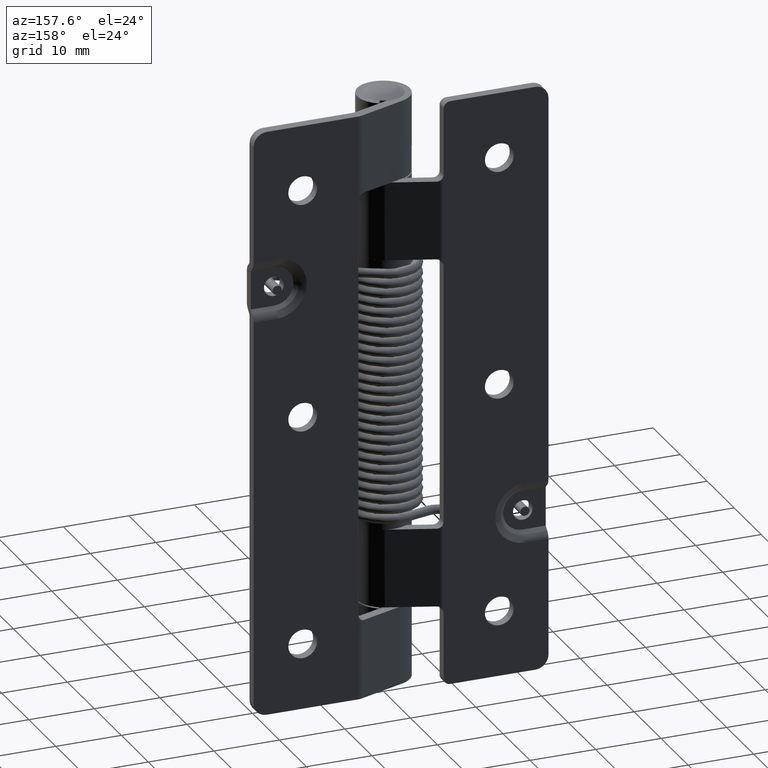
[diagram: clean part render]
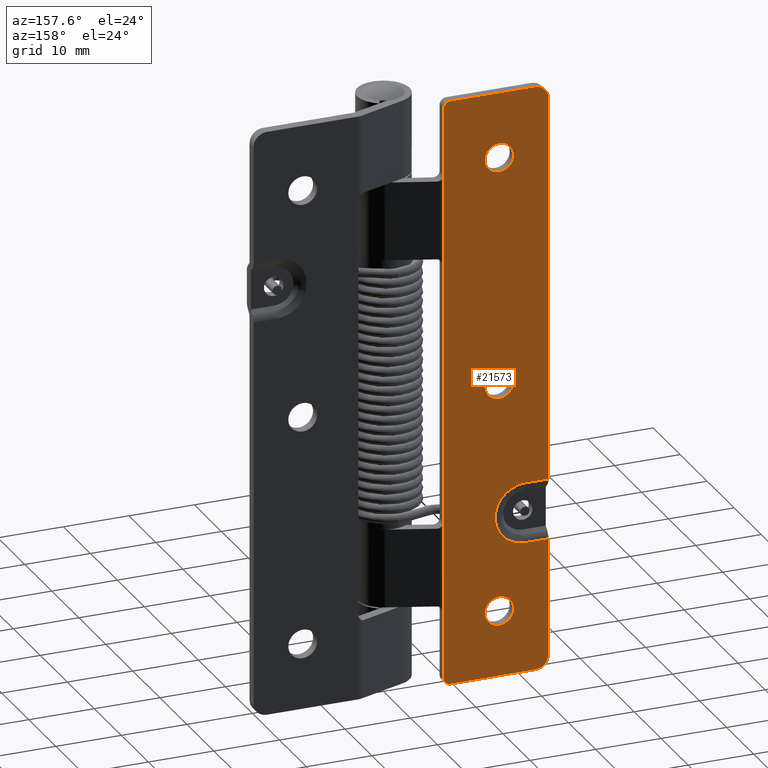
[diagram: same view with one face highlighted and labeled with its STEP entity id]
A machine part, auxiliary view. The second image highlights one B-rep face of the part: STEP entity #21573.
In plain terms, the highlighted face is a freeform B-spline surface patch.
Its self-contained STEP definition (entity closure, byte-faithful):
#18577=CARTESIAN_POINT('',(-13.377989701339310,6.500000000000000,81.486298779071063));
#18578=VERTEX_POINT('',#18577);
#18584=CARTESIAN_POINT('',(-12.799999999973810,6.500000000000000,80.000001341051615));
#18585=VERTEX_POINT('',#18584);
#18586=CARTESIAN_POINT('',(-12.799999999973810,6.500000000000000,80.000001341051615));
#18587=CARTESIAN_POINT('',(-12.799806779069691,6.499999999999999,80.255012563953002));
#18588=CARTESIAN_POINT('',(-12.895714095362850,6.499999999999999,80.798816434485417));
#18589=CARTESIAN_POINT('',(-13.182475110645230,6.500000000000005,81.273428980489641));
#18590=CARTESIAN_POINT('',(-13.377989701339310,6.500000000000000,81.486298779071063));
#18591=B_SPLINE_CURVE_WITH_KNOTS('',3,(#18586,#18587,#18588,#18589,#18590),.UNSPECIFIED.,.F.,.U.,(4,1,4),(0.000000041432975,0.764972969320677,1.631918291861970),.UNSPECIFIED.);
#18592=EDGE_CURVE('',#18585,#18578,#18591,.T.);
#18594=CARTESIAN_POINT('',(-14.999999999973401,6.500000000000000,77.800000000000011));
#18595=VERTEX_POINT('',#18594);
#18596=CARTESIAN_POINT('',(-14.999999999973401,6.500000000000000,77.800000000000011));
#18597=CARTESIAN_POINT('',(-14.820012265788719,6.500000000000003,77.799959054639615));
#18598=CARTESIAN_POINT('',(-14.478057489025090,6.500000000000001,77.842198995238348));
#18599=CARTESIAN_POINT('',(-14.019742263973921,6.499999999999990,78.012552772954919));
#18600=CARTESIAN_POINT('',(-13.637763846942720,6.500000000000016,78.254458045177699));
#18601=CARTESIAN_POINT('',(-13.323400110824650,6.499999999999998,78.553752762167719));
#18602=CARTESIAN_POINT('',(-13.094316573614510,6.500000000000009,78.879051944313673));
#18603=CARTESIAN_POINT('',(-12.870478719436260,6.499999999999958,79.352185085314233));
#18604=CARTESIAN_POINT('',(-12.799743615870330,6.500000000000028,79.729972473691632));
#18605=CARTESIAN_POINT('',(-12.799999999973810,6.500000000000000,80.000001341051615));
#18606=B_SPLINE_CURVE_WITH_KNOTS('',3,(#18596,#18597,#18598,#18599,#18600,#18601,#18602,#18603,#18604,#18605),.UNSPECIFIED.,.F.,.U.,(4,1,1,1,1,1,1,4),(0.000000119337975,0.539963458544781,1.025960383100677,1.457961161233303,1.889881951044141,2.321879742460357,2.645878031166004,3.455839393398152),.UNSPECIFIED.);
#18607=EDGE_CURVE('',#18595,#18585,#18606,.T.);
#18609=CARTESIAN_POINT('',(-16.622010298607488,6.500000000000000,78.513701220928937));
#18610=VERTEX_POINT('',#18609);
#18611=CARTESIAN_POINT('',(-16.622010298607488,6.500000000000000,78.513701220928937));
#18612=CARTESIAN_POINT('',(-16.519338886788731,6.500000000000010,78.401635828081240));
#18613=CARTESIAN_POINT('',(-16.247808691613059,6.499999999999997,78.160834674769234));
#18614=CARTESIAN_POINT('',(-15.702869317306391,6.500000000000000,77.877594385982533));
#18615=CARTESIAN_POINT('',(-15.247007015395861,6.499999999999995,77.799838804242924));
#18616=CARTESIAN_POINT('',(-14.999999999973401,6.500000000000000,77.800000000000011));
#18617=B_SPLINE_CURVE_WITH_KNOTS('',3,(#18611,#18612,#18613,#18614,#18615,#18616),.UNSPECIFIED.,.F.,.U.,(4,1,1,4),(0.000000031291066,0.455980040628832,1.082944215701101,1.823920068532576),.UNSPECIFIED.);
#18618=EDGE_CURVE('',#18610,#18595,#18617,.T.);
#18707=CARTESIAN_POINT('',(-17.199999999972992,6.500000000000000,79.999998658948385));
#18708=VERTEX_POINT('',#18707);
#18709=CARTESIAN_POINT('',(-17.199999999972992,6.500000000000000,79.999998658948385));
#18710=CARTESIAN_POINT('',(-17.200017201221058,6.499999999999993,79.847009882157778));
#18711=CARTESIAN_POINT('',(-17.166196202512030,6.500000000000007,79.524036828625739));
#18712=CARTESIAN_POINT('',(-16.991594156724901,6.500000000000008,79.004996454522214));
#18713=CARTESIAN_POINT('',(-16.771398838562000,6.499999999999991,78.676564451748433));
#18714=CARTESIAN_POINT('',(-16.622010298607488,6.500000000000000,78.513701220928937));
#18715=B_SPLINE_CURVE_WITH_KNOTS('',3,(#18709,#18710,#18711,#18712,#18713,#18714),.UNSPECIFIED.,.F.,.U.,(4,1,1,4),(0.000000041431848,0.458979640109364,0.968938776615176,1.631918291861960),.UNSPECIFIED.);
#18716=EDGE_CURVE('',#18708,#18610,#18715,.T.);
#18718=CARTESIAN_POINT('',(-14.999999999973401,6.500000000000000,82.199999999999989));
#18719=VERTEX_POINT('',#18718);
#18720=CARTESIAN_POINT('',(-14.999999999973401,6.500000000000000,82.199999999999989));
#18721=CARTESIAN_POINT('',(-15.270019082742481,6.499999999999994,82.200210620302130));
#18722=CARTESIAN_POINT('',(-15.683797835315559,6.500000000000001,82.122814236799854));
#18723=CARTESIAN_POINT('',(-16.216883562402309,6.499999999999992,81.854392682414883));
#18724=CARTESIAN_POINT('',(-16.665606913036751,6.500000000000006,81.486361685043860));
#18725=CARTESIAN_POINT('',(-16.990314925633619,6.499999999999999,81.000395285986428));
#18726=CARTESIAN_POINT('',(-17.166028101356389,6.500000000000001,80.467941266540038));
#18727=CARTESIAN_POINT('',(-17.200034295412809,6.499999999999979,80.161988732216869));
#18728=CARTESIAN_POINT('',(-17.199999999972992,6.500000000000000,79.999998658948385));
#18729=B_SPLINE_CURVE_WITH_KNOTS('',3,(#18720,#18721,#18722,#18723,#18724,#18725,#18726,#18727,#18728),.UNSPECIFIED.,.F.,.U.,(4,1,1,1,1,1,4),(0.000000119336327,0.809961701220482,1.241946409601381,1.781902457822589,2.537881118140890,2.969866776532188,3.455839393398153),.UNSPECIFIED.);
#18730=EDGE_CURVE('',#18719,#18708,#18729,.T.);
#18732=CARTESIAN_POINT('',(-13.377989701339310,6.500000000000000,81.486298779071063));
#18733=CARTESIAN_POINT('',(-13.519120823883201,6.500000000000008,81.640453927407549));
#18734=CARTESIAN_POINT('',(-13.771555967705879,6.499999999999994,81.847112938782061));
#18735=CARTESIAN_POINT('',(-14.316233884004230,6.500000000000007,82.121357561307931));
#18736=CARTESIAN_POINT('',(-14.714958185483670,6.499999999999999,82.200321106597272));
#18737=CARTESIAN_POINT('',(-14.999999999973401,6.500000000000000,82.199999999999989));
#18738=B_SPLINE_CURVE_WITH_KNOTS('',3,(#18732,#18733,#18734,#18735,#18736,#18737),.UNSPECIFIED.,.F.,.U.,(4,1,1,4),(0.000000031292747,0.626979836887177,0.968953283160556,1.823920068532557),.UNSPECIFIED.);
#18739=EDGE_CURVE('',#18578,#18719,#18738,.T.);
#18775=CARTESIAN_POINT('',(-13.377989701339310,6.500000000000001,46.486298779071063));
#18776=VERTEX_POINT('',#18775);
#18782=CARTESIAN_POINT('',(-12.799999999973810,6.500000000000001,45.000001341051622));
#18783=VERTEX_POINT('',#18782);
#18784=CARTESIAN_POINT('',(-12.799999999973810,6.500000000000001,45.000001341051622));
#18785=CARTESIAN_POINT('',(-12.799816804972281,6.500000000000001,45.255008541077260));
#18786=CARTESIAN_POINT('',(-12.895672407009661,6.499999999999997,45.798832982020471));
#18787=CARTESIAN_POINT('',(-13.182510713349730,6.500000000000006,46.273411516028943));
#18788=CARTESIAN_POINT('',(-13.377989701339310,6.500000000000001,46.486298779071063));
#18789=B_SPLINE_CURVE_WITH_KNOTS('',3,(#18784,#18785,#18786,#18787,#18788),.UNSPECIFIED.,.F.,.U.,(4,1,4),(0.000000041432271,0.764972969320550,1.631918291861962),.UNSPECIFIED.);
#18790=EDGE_CURVE('',#18783,#18776,#18789,.T.);
#18792=CARTESIAN_POINT('',(-14.999999999973401,6.500000000000000,42.799999999999997));
#18793=VERTEX_POINT('',#18792);
#18794=CARTESIAN_POINT('',(-14.999999999973401,6.500000000000000,42.799999999999997));
#18795=CARTESIAN_POINT('',(-14.820012702359660,6.500000000000004,42.799958632240617));
#18796=CARTESIAN_POINT('',(-14.478056477498180,6.499999999999996,42.842199830614213));
#18797=CARTESIAN_POINT('',(-14.019743214529891,6.500000000000014,43.012552705798903));
#18798=CARTESIAN_POINT('',(-13.637763904503061,6.499999999999989,43.254458202587742));
#18799=CARTESIAN_POINT('',(-13.297193478731710,6.500000000000004,43.578688662796090));
#18800=CARTESIAN_POINT('',(-13.015056606783270,6.499999999999982,44.000849339286191));
#18801=CARTESIAN_POINT('',(-12.837928812465570,6.500000000000071,44.496044920458608));
#18802=CARTESIAN_POINT('',(-12.799971406449711,6.499999999999949,44.838013364906693));
#18803=CARTESIAN_POINT('',(-12.799999999973810,6.500000000000001,45.000001341051622));
#18804=B_SPLINE_CURVE_WITH_KNOTS('',3,(#18794,#18795,#18796,#18797,#18798,#18799,#18800,#18801,#18802,#18803),.UNSPECIFIED.,.F.,.U.,(4,1,1,1,1,1,1,4),(0.000000119334410,0.539963458541999,1.025960383098603,1.457961161231935,1.889881951043199,2.429879285872298,2.969866776532105,3.455839393398165),.UNSPECIFIED.);
#18805=EDGE_CURVE('',#18793,#18783,#18804,.T.);
#18807=CARTESIAN_POINT('',(-16.622010298607488,6.500000000000000,43.513701220928937));
#18808=VERTEX_POINT('',#18807);
#18809=CARTESIAN_POINT('',(-16.622010298607488,6.500000000000000,43.513701220928937));
#18810=CARTESIAN_POINT('',(-16.455253090298029,6.499999999999984,43.331479077102387));
#18811=CARTESIAN_POINT('',(-16.135593218434270,6.500000000000018,43.083416734507352));
#18812=CARTESIAN_POINT('',(-15.569917664350760,6.499999999999989,42.851841948983299));
#18813=CARTESIAN_POINT('',(-15.208994972169510,6.500000000000014,42.799917668759747));
#18814=CARTESIAN_POINT('',(-14.999999999973401,6.500000000000000,42.799999999999997));
#18815=B_SPLINE_CURVE_WITH_KNOTS('',3,(#18809,#18810,#18811,#18812,#18813,#18814),.UNSPECIFIED.,.F.,.U.,(4,1,1,4),(0.000000031292259,0.740975884128395,1.196940262975004,1.823920068532590),.UNSPECIFIED.);
#18816=EDGE_CURVE('',#18808,#18793,#18815,.T.);
#18904=CARTESIAN_POINT('',(-17.199999999972992,6.500000000000000,44.999998658948392));
#18905=VERTEX_POINT('',#18904);
#18906=CARTESIAN_POINT('',(-17.199999999972992,6.500000000000000,44.999998658948392));
#18907=CARTESIAN_POINT('',(-17.200183474029139,6.500000000000010,44.744991511805672));
#18908=CARTESIAN_POINT('',(-17.104328186554980,6.499999999999988,44.201166094234956));
#18909=CARTESIAN_POINT('',(-16.817489110601780,6.500000000000006,43.726588827961237));
#18910=CARTESIAN_POINT('',(-16.622010298607488,6.500000000000000,43.513701220928937));
#18911=B_SPLINE_CURVE_WITH_KNOTS('',3,(#18906,#18907,#18908,#18909,#18910),.UNSPECIFIED.,.F.,.U.,(4,1,4),(0.000000041432455,0.764972969320328,1.631918291861981),.UNSPECIFIED.);
#18912=EDGE_CURVE('',#18905,#18808,#18911,.T.);
#18914=CARTESIAN_POINT('',(-14.999999999973401,6.500000000000000,47.200000000000003));
#18915=VERTEX_POINT('',#18914);
#18916=CARTESIAN_POINT('',(-14.999999999973401,6.500000000000000,47.200000000000003));
#18917=CARTESIAN_POINT('',(-15.269999235257190,6.500000000000002,47.200196814908622));
#18918=CARTESIAN_POINT('',(-15.755827091042450,6.500000000000004,47.109409631884247));
#18919=CARTESIAN_POINT('',(-16.404947952679191,6.499999999999999,46.741733629016387));
#18920=CARTESIAN_POINT('',(-16.846530043717170,6.499999999999996,46.254515669167120));
#18921=CARTESIAN_POINT('',(-17.133288525593009,6.500000000000011,45.647872128913299));
#18922=CARTESIAN_POINT('',(-17.200137240262649,6.499999999999995,45.233992916953483));
#18923=CARTESIAN_POINT('',(-17.199999999972992,6.500000000000000,44.999998658948392));
#18924=B_SPLINE_CURVE_WITH_KNOTS('',3,(#18916,#18917,#18918,#18919,#18920,#18921,#18922,#18923),.UNSPECIFIED.,.F.,.U.,(4,1,1,1,1,4),(0.000000119328077,0.809961701214544,1.457961161229064,2.213892370918137,2.753879863960027,3.455839393398185),.UNSPECIFIED.);
#18925=EDGE_CURVE('',#18915,#18905,#18924,.T.);
#18927=CARTESIAN_POINT('',(-13.377989701339310,6.500000000000001,46.486298779071063));
#18928=CARTESIAN_POINT('',(-13.544748052105421,6.499999999999993,46.668521062171529));
#18929=CARTESIAN_POINT('',(-13.864405904240300,6.500000000000005,46.916583718253150));
#18930=CARTESIAN_POINT('',(-14.430081573944401,6.499999999999998,47.148157771193027));
#18931=CARTESIAN_POINT('',(-14.791005495675270,6.499999999999998,47.200082005871643));
#18932=CARTESIAN_POINT('',(-14.999999999973401,6.500000000000000,47.200000000000003));
#18933=B_SPLINE_CURVE_WITH_KNOTS('',3,(#18927,#18928,#18929,#18930,#18931,#18932),.UNSPECIFIED.,.F.,.U.,(4,1,1,4),(0.000000031291429,0.740975884127962,1.196940262974780,1.823920068532596),.UNSPECIFIED.);
#18934=EDGE_CURVE('',#18776,#18915,#18933,.T.);
#18970=CARTESIAN_POINT('',(-13.377989701339390,6.500000000000000,11.486298779071060));
#18971=VERTEX_POINT('',#18970);
#18977=CARTESIAN_POINT('',(-12.799999999973890,6.500000000000000,10.000001341051620));
#18978=VERTEX_POINT('',#18977);
#18979=CARTESIAN_POINT('',(-12.799999999973890,6.500000000000000,10.000001341051620));
#18980=CARTESIAN_POINT('',(-12.799703064301751,6.500000000000000,10.289021682112340));
#18981=CARTESIAN_POINT('',(-12.908842155191509,6.500000000000012,10.832702629967221));
#18982=CARTESIAN_POINT('',(-13.205574515781210,6.499999999999983,11.298411961539991));
#18983=CARTESIAN_POINT('',(-13.377989701339390,6.500000000000000,11.486298779071060));
#18984=B_SPLINE_CURVE_WITH_KNOTS('',3,(#18979,#18980,#18981,#18982,#18983),.UNSPECIFIED.,.F.,.U.,(4,1,4),(0.000000041432939,0.866945363968755,1.631918291861957),.UNSPECIFIED.);
#18985=EDGE_CURVE('',#18978,#18971,#18984,.T.);
#18987=CARTESIAN_POINT('',(-14.999999999973481,6.500000000000000,7.800000000000000));
#18988=VERTEX_POINT('',#18987);
#18989=CARTESIAN_POINT('',(-14.999999999973481,6.500000000000000,7.800000000000000));
#18990=CARTESIAN_POINT('',(-14.693941698951710,6.500000000000012,7.799624769448820));
#18991=CARTESIAN_POINT('',(-14.244322339271919,6.499999999999995,7.895420992693118));
#18992=CARTESIAN_POINT('',(-13.693570182588131,6.499999999999999,8.207545255266961));
#18993=CARTESIAN_POINT('',(-13.344223846146990,6.500000000000018,8.524164399812422));
#18994=CARTESIAN_POINT('',(-13.073477956709100,6.499999999999959,8.908622457354150));
#18995=CARTESIAN_POINT('',(-12.860883221034291,6.500000000000067,9.388115728596629));
#18996=CARTESIAN_POINT('',(-12.799880462478621,6.499999999999962,9.766003211242985));
#18997=CARTESIAN_POINT('',(-12.799999999973890,6.500000000000000,10.000001341051620));
#18998=B_SPLINE_CURVE_WITH_KNOTS('',3,(#18989,#18990,#18991,#18992,#18993,#18994,#18995,#18996,#18997),.UNSPECIFIED.,.F.,.U.,(4,1,1,1,1,1,4),(0.000000119333313,0.917958583113831,1.349952778542426,1.889881951043158,2.321879742459847,2.753879863960657,3.455839393398193),.UNSPECIFIED.);
#18999=EDGE_CURVE('',#18988,#18978,#18998,.T.);
#19001=CARTESIAN_POINT('',(-16.622010298607570,6.500000000000000,8.513701220928944));
#19002=VERTEX_POINT('',#19001);
#19003=CARTESIAN_POINT('',(-16.622010298607570,6.500000000000000,8.513701220928944));
#19004=CARTESIAN_POINT('',(-16.429660650989021,6.500000000000000,8.303346623199175));
#19005=CARTESIAN_POINT('',(-16.102093843739031,6.500000000000023,8.062692037476722));
#19006=CARTESIAN_POINT('',(-15.531911898057590,6.499999999999975,7.846405357418046));
#19007=CARTESIAN_POINT('',(-15.208999445797780,6.500000000000010,7.799904293308127));
#19008=CARTESIAN_POINT('',(-14.999999999973481,6.500000000000000,7.800000000000000));
#19009=B_SPLINE_CURVE_WITH_KNOTS('',3,(#19003,#19004,#19005,#19006,#19007,#19008),.UNSPECIFIED.,.F.,.U.,(4,1,1,4),(0.000000031291889,0.854966816624315,1.196940262974943,1.823920068532586),.UNSPECIFIED.);
#19010=EDGE_CURVE('',#19002,#18988,#19009,.T.);
#19098=CARTESIAN_POINT('',(-17.199999999973070,6.500000000000000,9.999998658948391));
#19099=VERTEX_POINT('',#19098);
#19100=CARTESIAN_POINT('',(-17.199999999973070,6.500000000000000,9.999998658948391));
#19101=CARTESIAN_POINT('',(-17.200183898140420,6.500000000000000,9.744991234255210));
#19102=CARTESIAN_POINT('',(-17.104327269891559,6.499999999999999,9.201166738097214));
#19103=CARTESIAN_POINT('',(-16.817490686464240,6.499999999999996,8.726587688152844));
#19104=CARTESIAN_POINT('',(-16.622010298607570,6.500000000000000,8.513701220928944));
#19105=B_SPLINE_CURVE_WITH_KNOTS('',3,(#19100,#19101,#19102,#19103,#19104),.UNSPECIFIED.,.F.,.U.,(4,1,4),(0.000000041432700,0.764972969320550,1.631918291861965),.UNSPECIFIED.);
#19106=EDGE_CURVE('',#19099,#19002,#19105,.T.);
#19108=CARTESIAN_POINT('',(-14.999999999973481,6.500000000000000,12.199999999999999));
#19109=VERTEX_POINT('',#19108);
#19110=CARTESIAN_POINT('',(-14.999999999973481,6.500000000000000,12.199999999999999));
#19111=CARTESIAN_POINT('',(-15.270014490840470,6.500000000000012,12.200205339992060));
#19112=CARTESIAN_POINT('',(-15.683812317551530,6.499999999999984,12.122831976496290));
#19113=CARTESIAN_POINT('',(-16.184584465771920,6.500000000000019,11.870641437370040));
#19114=CARTESIAN_POINT('',(-16.526771252574850,6.499999999999980,11.603612642958870));
#19115=CARTESIAN_POINT('',(-16.833919502712732,6.500000000000040,11.247564356470770));
#19116=CARTESIAN_POINT('',(-17.116081382913659,6.499999999999942,10.719807075061571));
#19117=CARTESIAN_POINT('',(-17.200244009229170,6.500000000000025,10.270016474687511));
#19118=CARTESIAN_POINT('',(-17.199999999973070,6.500000000000000,9.999998658948391));
#19119=B_SPLINE_CURVE_WITH_KNOTS('',3,(#19110,#19111,#19112,#19113,#19114,#19115,#19116,#19117,#19118),.UNSPECIFIED.,.F.,.U.,(4,1,1,1,1,1,4),(0.000000119333345,0.809961701218327,1.241946409599792,1.673936861804195,2.105887216346038,2.645878031165787,3.455839393398158),.UNSPECIFIED.);
#19120=EDGE_CURVE('',#19109,#19099,#19119,.T.);
#19122=CARTESIAN_POINT('',(-13.377989701339390,6.500000000000000,11.486298779071060));
#19123=CARTESIAN_POINT('',(-13.519124112107489,6.499999999999994,11.640442091680031));
#19124=CARTESIAN_POINT('',(-13.801241677835851,6.500000000000003,11.871460989053549));
#19125=CARTESIAN_POINT('',(-14.354143679011241,6.500000000000001,12.132073107058460));
#19126=CARTESIAN_POINT('',(-14.752990360733440,6.500000000000007,12.200159847184660));
#19127=CARTESIAN_POINT('',(-14.999999999973481,6.500000000000000,12.199999999999999));
#19128=B_SPLINE_CURVE_WITH_KNOTS('',3,(#19122,#19123,#19124,#19125,#19126,#19127),.UNSPECIFIED.,.F.,.U.,(4,1,1,4),(0.000000031291980,0.626979836886482,1.082944215701177,1.823920068532595),.UNSPECIFIED.);
#19129=EDGE_CURVE('',#18971,#19109,#19128,.T.);
#20426=CARTESIAN_POINT('',(-18.999999999982851,6.500000000000000,19.878679656440749));
#20427=VERTEX_POINT('',#20426);
#20436=CARTESIAN_POINT('',(-22.499999999999599,6.500000000000000,19.878679656441399));
#20437=VERTEX_POINT('',#20436);
#20438=CARTESIAN_POINT('',(-22.499999999999599,6.500000000000000,19.878679656441399));
#20439=CARTESIAN_POINT('',(-18.999999999982851,6.500000000000000,19.878679656440749));
#20440=QUASI_UNIFORM_CURVE('',1,(#20438,#20439),.UNSPECIFIED.,.F.,.U.);
#20441=EDGE_CURVE('',#20437,#20427,#20440,.T.);
#20487=CARTESIAN_POINT('',(-18.999999999982350,6.500000000000000,29.121320343560051));
#20488=VERTEX_POINT('',#20487);
#20497=CARTESIAN_POINT('',(-14.378679656422509,6.500000000000000,24.500001518970290));
#20498=VERTEX_POINT('',#20497);
#20499=CARTESIAN_POINT('',(-14.378679656422509,6.500000000000000,24.500001518970290));
#20500=CARTESIAN_POINT('',(-14.378425554272400,6.500000000000001,24.991536476602860));
#20501=CARTESIAN_POINT('',(-14.524832275071759,6.500000000000022,25.898759419400481));
#20502=CARTESIAN_POINT('',(-15.051971259157931,6.499999999999950,26.978858496090361));
#20503=CARTESIAN_POINT('',(-15.625867219922760,6.500000000000132,27.686689120665910));
#20504=CARTESIAN_POINT('',(-16.204632414889829,6.499999999999824,28.204844652062999));
#20505=CARTESIAN_POINT('',(-16.907554340122289,6.500000000000171,28.656095472430639));
#20506=CARTESIAN_POINT('',(-17.865811341138620,6.499999999999879,29.025731147465880));
#20507=CARTESIAN_POINT('',(-18.603007372782422,6.500000000000059,29.121436686432951));
#20508=CARTESIAN_POINT('',(-18.999999999982350,6.500000000000000,29.121320343560051));
#20509=B_SPLINE_CURVE_WITH_KNOTS('',3,(#20499,#20500,#20501,#20502,#20503,#20504,#20505,#20506,#20507,#20508),.UNSPECIFIED.,.F.,.U.,(4,1,1,1,1,1,1,4),(0.000000117156518,1.474518842942890,2.722220309777566,3.572920283394400,4.196694999867026,5.047408519195122,6.068250383834534,7.259197712596379),.UNSPECIFIED.);
#20510=EDGE_CURVE('',#20498,#20488,#20509,.T.);
#20512=CARTESIAN_POINT('',(-18.999999999982851,6.500000000000000,19.878679656440749));
#20513=CARTESIAN_POINT('',(-18.716446451971549,6.500000000000004,19.878659742058630));
#20514=CARTESIAN_POINT('',(-18.111521177324970,6.499999999999994,19.934503584627269));
#20515=CARTESIAN_POINT('',(-17.236848812622629,6.500000000000006,20.193967097277898));
#20516=CARTESIAN_POINT('',(-16.315402126565179,6.499999999999993,20.686403555323331));
#20517=CARTESIAN_POINT('',(-15.557982760858311,6.500000000000029,21.356121599239650));
#20518=CARTESIAN_POINT('',(-15.017795237429000,6.500000000000001,22.113456945022939));
#20519=CARTESIAN_POINT('',(-14.676902113814350,6.499999999999994,22.811874840159959));
#20520=CARTESIAN_POINT('',(-14.440055006549040,6.499999999999985,23.592623075684362));
#20521=CARTESIAN_POINT('',(-14.378635050441940,6.500000000000046,24.178630382668398));
#20522=CARTESIAN_POINT('',(-14.378679656422509,6.500000000000000,24.500001518970290));
#20523=B_SPLINE_CURVE_WITH_KNOTS('',3,(#20512,#20513,#20514,#20515,#20516,#20517,#20518,#20519,#20520,#20521,#20522),.UNSPECIFIED.,.F.,.U.,(4,1,1,1,1,1,1,1,4),(0.000000116635031,0.850664848298607,1.814801062086057,2.722220951333848,3.969864319022877,4.820547402095736,5.501112976103672,6.295088286757776,7.259199424840398),.UNSPECIFIED.);
#20524=EDGE_CURVE('',#20427,#20498,#20523,.T.);
#20570=CARTESIAN_POINT('',(-22.499999999999599,6.500000000000000,29.121320343558651));
#20571=VERTEX_POINT('',#20570);
#20582=CARTESIAN_POINT('',(-18.999999999982350,6.500000000000000,29.121320343560051));
#20583=CARTESIAN_POINT('',(-22.499999999999599,6.500000000000000,29.121320343558651));
#20584=QUASI_UNIFORM_CURVE('',1,(#20582,#20583),.UNSPECIFIED.,.F.,.U.);
#20585=EDGE_CURVE('',#20488,#20571,#20584,.T.);
#21020=CARTESIAN_POINT('',(-7.499999999964390,6.500000000000000,0.0));
#21021=VERTEX_POINT('',#21020);
#21027=CARTESIAN_POINT('',(-6.499999999964390,6.500000000000000,1.0));
#21028=VERTEX_POINT('',#21027);
#21029=CARTESIAN_POINT('',(-6.499999999964390,6.500000000000000,1.0));
#21030=CARTESIAN_POINT('',(-6.499986051714496,6.500000000000007,0.918187811694313));
#21031=CARTESIAN_POINT('',(-6.523186774518901,6.499999999999990,0.730009568590729));
#21032=CARTESIAN_POINT('',(-6.634153771973599,6.500000000000025,0.471087811715973));
#21033=CARTESIAN_POINT('',(-6.825538614567462,6.499999999999984,0.243673587552638));
#21034=CARTESIAN_POINT('',(-7.107460355097700,6.500000000000010,0.055238903313860));
#21035=CARTESIAN_POINT('',(-7.352693784692491,6.499999999999996,-0.000221234827651));
#21036=CARTESIAN_POINT('',(-7.499999999964390,6.500000000000000,0.0));
#21037=B_SPLINE_CURVE_WITH_KNOTS('',3,(#21029,#21030,#21031,#21032,#21033,#21034,#21035,#21036),.UNSPECIFIED.,.F.,.U.,(4,1,1,1,1,4),(0.000000247182635,0.245441496472193,0.564536836961650,0.834482977435566,1.129033901482359,1.570835744380679),.UNSPECIFIED.);
#21038=EDGE_CURVE('',#21028,#21021,#21037,.T.);
#21063=CARTESIAN_POINT('',(-6.499999999964500,6.500000000000000,11.199999999999999));
#21064=VERTEX_POINT('',#21063);
#21111=CARTESIAN_POINT('',(-6.499999999965239,6.500000000000000,25.199999999999999));
#21112=VERTEX_POINT('',#21111);
#21155=CARTESIAN_POINT('',(-6.499999999964390,6.500000000000000,89.0));
#21156=VERTEX_POINT('',#21155);
#21162=CARTESIAN_POINT('',(-7.499999999964390,6.500000000000000,90.0));
#21163=VERTEX_POINT('',#21162);
#21164=CARTESIAN_POINT('',(-7.499999999964390,6.500000000000000,90.0));
#21165=CARTESIAN_POINT('',(-7.336281915534270,6.500000000000000,90.000357532113526));
#21166=CARTESIAN_POINT('',(-7.115735607404805,6.500000000000002,89.944570987955998));
#21167=CARTESIAN_POINT('',(-6.861075274746352,6.499999999999996,89.778797718079034));
#21168=CARTESIAN_POINT('',(-6.721209945533827,6.500000000000016,89.638919783128799));
#21169=CARTESIAN_POINT('',(-6.555411831444953,6.499999999999974,89.384271253921682));
#21170=CARTESIAN_POINT('',(-6.499658605611121,6.500000000000019,89.163712716866698));
#21171=CARTESIAN_POINT('',(-6.499999999964390,6.500000000000000,89.0));
#21172=B_SPLINE_CURVE_WITH_KNOTS('',3,(#21164,#21165,#21166,#21167,#21168,#21169,#21170,#21171),.UNSPECIFIED.,.F.,.U.,(4,1,1,1,1,4),(0.000000247184405,0.490891537112225,0.662698180229982,0.908137811335377,1.079944454453021,1.570835744380680),.UNSPECIFIED.);
#21173=EDGE_CURVE('',#21163,#21156,#21172,.T.);
#21200=CARTESIAN_POINT('',(-6.499999999965239,6.500000000000000,78.799999999999997));
#21201=VERTEX_POINT('',#21200);
#21244=CARTESIAN_POINT('',(-6.499999999964590,6.500000000000000,64.799999999999997));
#21245=VERTEX_POINT('',#21244);
#21289=CARTESIAN_POINT('',(-20.499999999999599,6.500000000000000,0.0));
#21290=VERTEX_POINT('',#21289);
#21291=CARTESIAN_POINT('',(-22.499999999999599,6.500000000000000,2.0));
#21292=VERTEX_POINT('',#21291);
#21293=CARTESIAN_POINT('',(-20.499999999999599,6.500000000000000,0.0));
#21294=CARTESIAN_POINT('',(-20.696361517695259,6.500000000000006,-0.000095144618187));
#21295=CARTESIAN_POINT('',(-21.007189100895971,6.499999999999994,0.046176899659273));
#21296=CARTESIAN_POINT('',(-21.418905837944362,6.500000000000012,0.210849283198834));
#21297=CARTESIAN_POINT('',(-21.794025423428991,6.499999999999979,0.448270297872406));
#21298=CARTESIAN_POINT('',(-22.136147917509579,6.500000000000020,0.807669625501136));
#21299=CARTESIAN_POINT('',(-22.423696994265299,6.499999999999989,1.345644431446127));
#21300=CARTESIAN_POINT('',(-22.500225642069999,6.499999999999997,1.754526839633830));
#21301=CARTESIAN_POINT('',(-22.499999999999599,6.500000000000000,2.0));
#21302=B_SPLINE_CURVE_WITH_KNOTS('',3,(#21293,#21294,#21295,#21296,#21297,#21298,#21299,#21300,#21301),.UNSPECIFIED.,.F.,.U.,(4,1,1,1,1,1,4),(0.000000139751978,0.589061923433898,0.932686175683449,1.325416835408616,1.914453318771342,2.405344994880691,3.141671488676722),.UNSPECIFIED.);
#21303=EDGE_CURVE('',#21290,#21292,#21302,.T.);
#21333=CARTESIAN_POINT('',(-22.499999999999599,6.500000000000000,88.0));
#21334=VERTEX_POINT('',#21333);
#21335=CARTESIAN_POINT('',(-20.499999999999599,6.500000000000000,90.0));
#21336=VERTEX_POINT('',#21335);
#21337=CARTESIAN_POINT('',(-22.499999999999599,6.500000000000000,88.0));
#21338=CARTESIAN_POINT('',(-22.500161749788770,6.500000000000004,88.229092930446456));
#21339=CARTESIAN_POINT('',(-22.423268327117270,6.499999999999998,88.670792717793717));
#21340=CARTESIAN_POINT('',(-22.143629748427500,6.499999999999996,89.178903649137936));
#21341=CARTESIAN_POINT('',(-21.792093586102311,6.500000000000008,89.548004186717577));
#21342=CARTESIAN_POINT('',(-21.435721031960309,6.499999999999996,89.786147546741475));
#21343=CARTESIAN_POINT('',(-20.990842886242291,6.499999999999998,89.957742756813616));
#21344=CARTESIAN_POINT('',(-20.679987728423740,6.500000000000004,90.000054288667073));
#21345=CARTESIAN_POINT('',(-20.499999999999599,6.500000000000000,90.0));
#21346=B_SPLINE_CURVE_WITH_KNOTS('',3,(#21337,#21338,#21339,#21340,#21341,#21342,#21343,#21344,#21345),.UNSPECIFIED.,.F.,.U.,(4,1,1,1,1,1,4),(0.000000139754519,0.687236579745999,1.325416835409188,1.718068971882084,2.208987673410981,2.601708324521309,3.141671488676723),.UNSPECIFIED.);
#21347=EDGE_CURVE('',#21334,#21336,#21346,.T.);
#21377=CARTESIAN_POINT('',(-6.499999999965239,6.500000000000000,78.799999999999997));
#21378=CARTESIAN_POINT('',(-6.499999999964590,6.500000000000000,64.799999999999997));
#21379=QUASI_UNIFORM_CURVE('',1,(#21377,#21378),.UNSPECIFIED.,.F.,.U.);
#21380=EDGE_CURVE('',#21201,#21245,#21379,.T.);
#21402=CARTESIAN_POINT('',(-6.499999999965239,6.500000000000000,25.199999999999999));
#21403=CARTESIAN_POINT('',(-6.499999999964500,6.500000000000000,11.199999999999999));
#21404=QUASI_UNIFORM_CURVE('',1,(#21402,#21403),.UNSPECIFIED.,.F.,.U.);
#21405=EDGE_CURVE('',#21112,#21064,#21404,.T.);
#21418=CARTESIAN_POINT('',(-6.499999999964390,6.500000000000000,1.0));
#21419=CARTESIAN_POINT('',(-6.499999999964500,6.500000000000000,11.199999999999999));
#21420=QUASI_UNIFORM_CURVE('',1,(#21418,#21419),.UNSPECIFIED.,.F.,.U.);
#21421=EDGE_CURVE('',#21028,#21064,#21420,.T.);
#21436=CARTESIAN_POINT('',(-6.499999999965239,6.500000000000000,78.799999999999997));
#21437=CARTESIAN_POINT('',(-6.499999999964390,6.500000000000000,89.0));
#21438=QUASI_UNIFORM_CURVE('',1,(#21436,#21437),.UNSPECIFIED.,.F.,.U.);
#21439=EDGE_CURVE('',#21201,#21156,#21438,.T.);
#21450=CARTESIAN_POINT('',(-6.499999999965239,6.500000000000000,25.199999999999999));
#21451=CARTESIAN_POINT('',(-6.499999999964590,6.500000000000000,64.799999999999997));
#21452=QUASI_UNIFORM_CURVE('',1,(#21450,#21451),.UNSPECIFIED.,.F.,.U.);
#21453=EDGE_CURVE('',#21112,#21245,#21452,.T.);
#21466=CARTESIAN_POINT('',(-7.499999999964390,6.500000000000000,0.0));
#21467=CARTESIAN_POINT('',(-20.499999999999599,6.500000000000000,0.0));
#21468=QUASI_UNIFORM_CURVE('',1,(#21466,#21467),.UNSPECIFIED.,.F.,.U.);
#21469=EDGE_CURVE('',#21021,#21290,#21468,.T.);
#21484=CARTESIAN_POINT('',(-7.499999999964390,6.500000000000000,90.0));
#21485=CARTESIAN_POINT('',(-20.499999999999599,6.500000000000000,90.0));
#21486=QUASI_UNIFORM_CURVE('',1,(#21484,#21485),.UNSPECIFIED.,.F.,.U.);
#21487=EDGE_CURVE('',#21163,#21336,#21486,.T.);
#21500=CARTESIAN_POINT('',(-22.499999999999599,6.500000000000000,19.878679656441399));
#21501=CARTESIAN_POINT('',(-22.499999999999599,6.500000000000000,2.0));
#21502=QUASI_UNIFORM_CURVE('',1,(#21500,#21501),.UNSPECIFIED.,.F.,.U.);
#21503=EDGE_CURVE('',#20437,#21292,#21502,.T.);
#21514=CARTESIAN_POINT('',(-22.499999999999599,6.500000000000000,88.0));
#21515=CARTESIAN_POINT('',(-22.499999999999599,6.500000000000000,29.121320343558651));
#21516=QUASI_UNIFORM_CURVE('',1,(#21514,#21515),.UNSPECIFIED.,.F.,.U.);
#21517=EDGE_CURVE('',#21334,#20571,#21516,.T.);
#21525=CARTESIAN_POINT('',(-23.299199968990258,6.500000000000000,94.495499825562533));
#21526=CARTESIAN_POINT('',(-23.299199968990258,6.500000000000000,-4.495502239550651));
#21527=CARTESIAN_POINT('',(-5.700799601820293,6.500000000000000,94.495499825562533));
#21528=CARTESIAN_POINT('',(-5.700799601820293,6.500000000000000,-4.495502239550651));
#21529=B_SPLINE_SURFACE_WITH_KNOTS('',1,1,((#21525,#21527),(#21526,#21528)),.UNSPECIFIED.,.F.,.F.,.U.,(2,2),(2,2),(0.0,98.991002065113179),(0.0,17.598400367169969),.UNSPECIFIED.);
#21530=ORIENTED_EDGE('',*,*,#21503,.F.);
#21531=ORIENTED_EDGE('',*,*,#20441,.T.);
#21532=ORIENTED_EDGE('',*,*,#20524,.T.);
#21533=ORIENTED_EDGE('',*,*,#20510,.T.);
#21534=ORIENTED_EDGE('',*,*,#20585,.T.);
#21535=ORIENTED_EDGE('',*,*,#21517,.F.);
#21536=ORIENTED_EDGE('',*,*,#21347,.T.);
#21537=ORIENTED_EDGE('',*,*,#21487,.F.);
#21538=ORIENTED_EDGE('',*,*,#21173,.T.);
#21539=ORIENTED_EDGE('',*,*,#21439,.F.);
#21540=ORIENTED_EDGE('',*,*,#21380,.T.);
#21541=ORIENTED_EDGE('',*,*,#21453,.F.);
#21542=ORIENTED_EDGE('',*,*,#21405,.T.);
#21543=ORIENTED_EDGE('',*,*,#21421,.F.);
#21544=ORIENTED_EDGE('',*,*,#21038,.T.);
#21545=ORIENTED_EDGE('',*,*,#21469,.T.);
#21546=ORIENTED_EDGE('',*,*,#21303,.T.);
#21547=EDGE_LOOP('',(#21530,#21531,#21532,#21533,#21534,#21535,#21536,#21537,#21538,#21539,#21540,#21541,#21542,#21543,#21544,#21545,#21546));
#21548=FACE_OUTER_BOUND('',#21547,.T.);
#21549=ORIENTED_EDGE('',*,*,#18925,.T.);
#21550=ORIENTED_EDGE('',*,*,#18912,.T.);
#21551=ORIENTED_EDGE('',*,*,#18816,.T.);
#21552=ORIENTED_EDGE('',*,*,#18805,.T.);
#21553=ORIENTED_EDGE('',*,*,#18790,.T.);
#21554=ORIENTED_EDGE('',*,*,#18934,.T.);
#21555=EDGE_LOOP('',(#21549,#21550,#21551,#21552,#21553,#21554));
#21556=FACE_BOUND('',#21555,.T.);
#21557=ORIENTED_EDGE('',*,*,#19120,.T.);
#21558=ORIENTED_EDGE('',*,*,#19106,.T.);
#21559=ORIENTED_EDGE('',*,*,#19010,.T.);
#21560=ORIENTED_EDGE('',*,*,#18999,.T.);
#21561=ORIENTED_EDGE('',*,*,#18985,.T.);
#21562=ORIENTED_EDGE('',*,*,#19129,.T.);
#21563=EDGE_LOOP('',(#21557,#21558,#21559,#21560,#21561,#21562));
#21564=FACE_BOUND('',#21563,.T.);
#21565=ORIENTED_EDGE('',*,*,#18730,.T.);
#21566=ORIENTED_EDGE('',*,*,#18716,.T.);
#21567=ORIENTED_EDGE('',*,*,#18618,.T.);
#21568=ORIENTED_EDGE('',*,*,#18607,.T.);
#21569=ORIENTED_EDGE('',*,*,#18592,.T.);
#21570=ORIENTED_EDGE('',*,*,#18739,.T.);
#21571=EDGE_LOOP('',(#21565,#21566,#21567,#21568,#21569,#21570));
#21572=FACE_BOUND('',#21571,.T.);
#21573=ADVANCED_FACE('',(#21548,#21556,#21564,#21572),#21529,.F.);